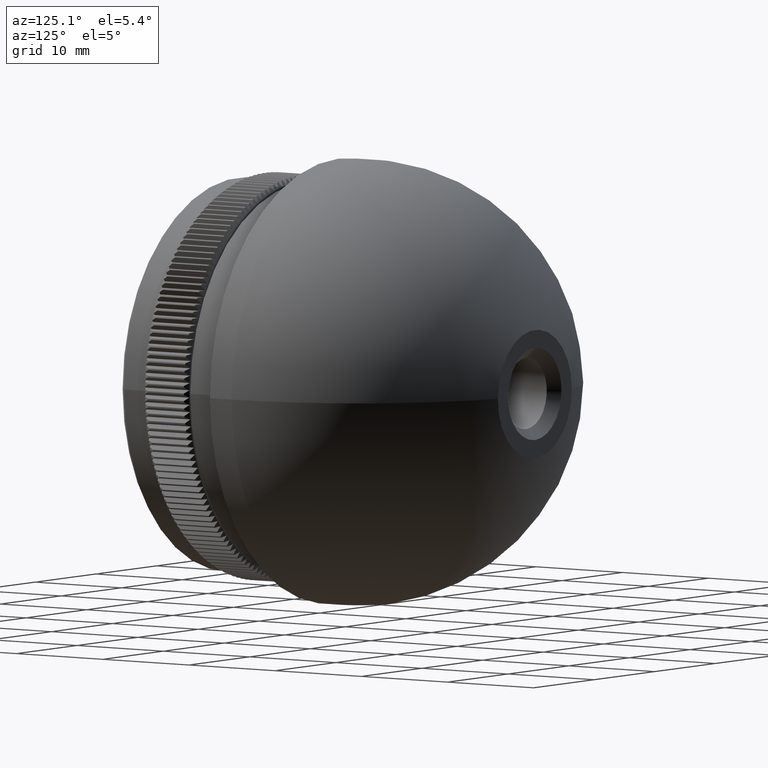
[diagram: clean part render]
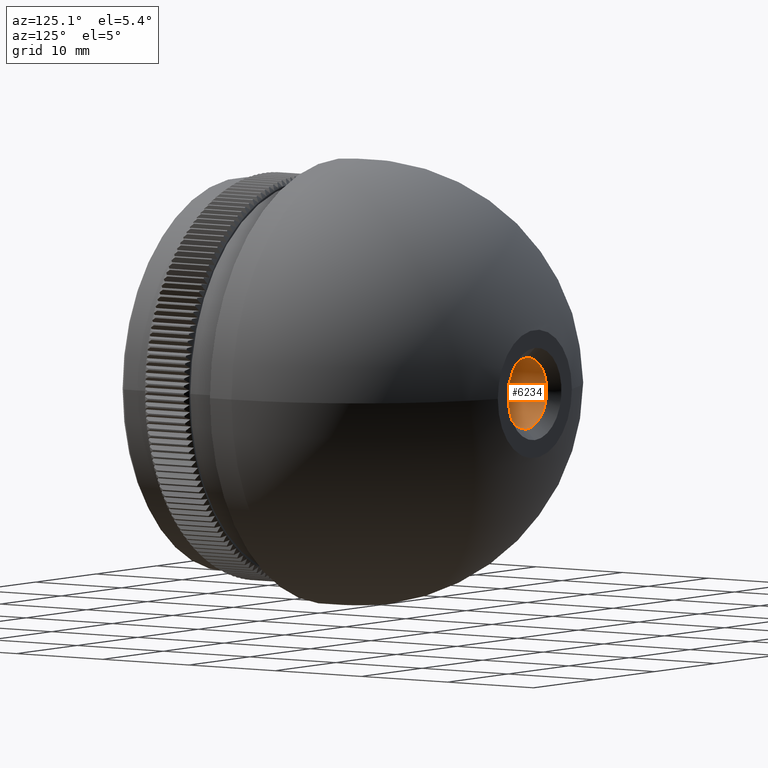
[diagram: same view with one face highlighted and labeled with its STEP entity id]
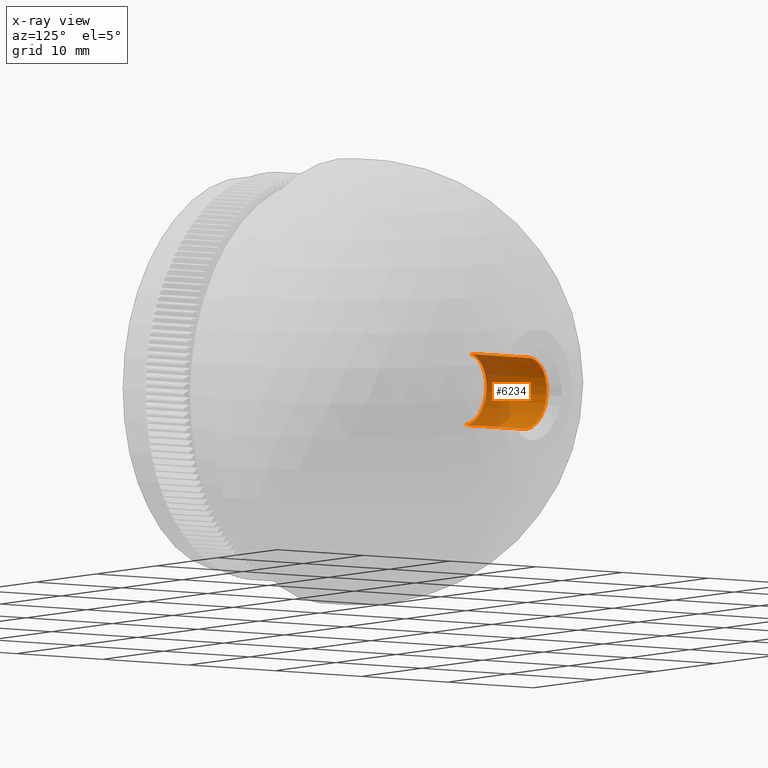
[diagram: x-ray of the same camera — body ghosted, the highlighted face saturated]
A machine part, auxiliary view. The second image highlights one B-rep face of the part: STEP entity #6234.
The next image is the same camera in x-ray: the body ghosted, the highlighted face saturated — about 45% of this face is hidden behind the body in this view.
In plain terms, the highlighted cylindrical surface (edge-blend (fillet) strip) has radius 3.4 mm, axis along (-0, 1, -0).
Its self-contained STEP definition (entity closure, byte-faithful):
#365 = CIRCLE ( 'NONE', #21010, 3.399999999999987900 ) ;
#2232 = CARTESIAN_POINT ( 'NONE',  ( 4.902535526863499200E-014, 27.00000000000003900, -3.399999999999987900 ) ) ;
#3230 = EDGE_LOOP ( 'NONE', ( #21419, #24566, #36278, #24977 ) ) ;
#4640 = EDGE_CURVE ( 'NONE', #37028, #36459, #26409, .T. ) ;
#5000 = CARTESIAN_POINT ( 'NONE',  ( 4.902535526863499200E-014, 34.00000000000002800, -3.399999999999987900 ) ) ;
#5130 = CARTESIAN_POINT ( 'NONE',  ( 4.860897535692489600E-014, 35.00000000000002800, 3.399999999999987900 ) ) ;
#6026 = CARTESIAN_POINT ( 'NONE',  ( 4.860897535692489600E-014, 27.00000000000003900, 3.399999999999987900 ) ) ;
#6234 = ADVANCED_FACE ( 'NONE', ( #32751 ), #27668, .F. ) ;
#6404 = DIRECTION ( 'NONE',  ( 0.0000000000000000000, 0.0000000000000000000, 1.000000000000000000 ) ) ;
#6874 = CARTESIAN_POINT ( 'NONE',  ( 4.860897535692489600E-014, 27.00000000000003900, 0.0000000000000000000 ) ) ;
#6967 = EDGE_CURVE ( 'NONE', #36459, #19653, #29492, .T. ) ;
#8807 = EDGE_CURVE ( 'NONE', #28872, #37028, #365, .T. ) ;
#13655 = DIRECTION ( 'NONE',  ( 0.0000000000000000000, 0.0000000000000000000, -1.000000000000000000 ) ) ;
#15782 = EDGE_CURVE ( 'NONE', #28872, #19653, #22909, .T. ) ;
#18533 = VECTOR ( 'NONE', #22567, 1000.000000000000000 ) ;
#19653 = VERTEX_POINT ( 'NONE', #32030 ) ;
#20242 = DIRECTION ( 'NONE',  ( -0.0000000000000000000, 1.000000000000000000, -0.0000000000000000000 ) ) ;
#21010 = AXIS2_PLACEMENT_3D ( 'NONE', #6874, #22096, #27504 ) ;
#21419 = ORIENTED_EDGE ( 'NONE', *, *, #8807, .T. ) ;
#22096 = DIRECTION ( 'NONE',  ( 1.224304257678195700E-016, -1.000000000000000000, 0.0000000000000000000 ) ) ;
#22567 = DIRECTION ( 'NONE',  ( -0.0000000000000000000, 1.000000000000000000, -0.0000000000000000000 ) ) ;
#22909 = LINE ( 'NONE', #5130, #33930 ) ;
#24566 = ORIENTED_EDGE ( 'NONE', *, *, #4640, .T. ) ;
#24977 = ORIENTED_EDGE ( 'NONE', *, *, #15782, .F. ) ;
#26409 = LINE ( 'NONE', #37231, #18533 ) ;
#26664 = AXIS2_PLACEMENT_3D ( 'NONE', #34393, #31673, #13655 ) ;
#27178 = DIRECTION ( 'NONE',  ( -0.0000000000000000000, 1.000000000000000000, -0.0000000000000000000 ) ) ;
#27504 = DIRECTION ( 'NONE',  ( 1.000000000000000000, 0.0000000000000000000, 0.0000000000000000000 ) ) ;
#27604 = AXIS2_PLACEMENT_3D ( 'NONE', #32833, #27178, #6404 ) ;
#27668 = CYLINDRICAL_SURFACE ( 'NONE', #27604, 3.399999999999987900 ) ;
#28872 = VERTEX_POINT ( 'NONE', #6026 ) ;
#29492 = CIRCLE ( 'NONE', #26664, 3.399999999999987900 ) ;
#31673 = DIRECTION ( 'NONE',  ( 0.0000000000000000000, 1.000000000000000000, 0.0000000000000000000 ) ) ;
#32030 = CARTESIAN_POINT ( 'NONE',  ( 4.860897535692489600E-014, 34.00000000000002800, 3.399999999999987900 ) ) ;
#32751 = FACE_OUTER_BOUND ( 'NONE', #3230, .T. ) ;
#32833 = CARTESIAN_POINT ( 'NONE',  ( 4.860897535692489600E-014, 35.00000000000002800, 0.0000000000000000000 ) ) ;
#33930 = VECTOR ( 'NONE', #20242, 1000.000000000000000 ) ;
#34393 = CARTESIAN_POINT ( 'NONE',  ( 4.860897535692489600E-014, 34.00000000000002800, 0.0000000000000000000 ) ) ;
#36278 = ORIENTED_EDGE ( 'NONE', *, *, #6967, .T. ) ;
#36459 = VERTEX_POINT ( 'NONE', #5000 ) ;
#37028 = VERTEX_POINT ( 'NONE', #2232 ) ;
#37231 = CARTESIAN_POINT ( 'NONE',  ( 4.902535526863499200E-014, 35.00000000000002800, -3.399999999999987900 ) ) ;